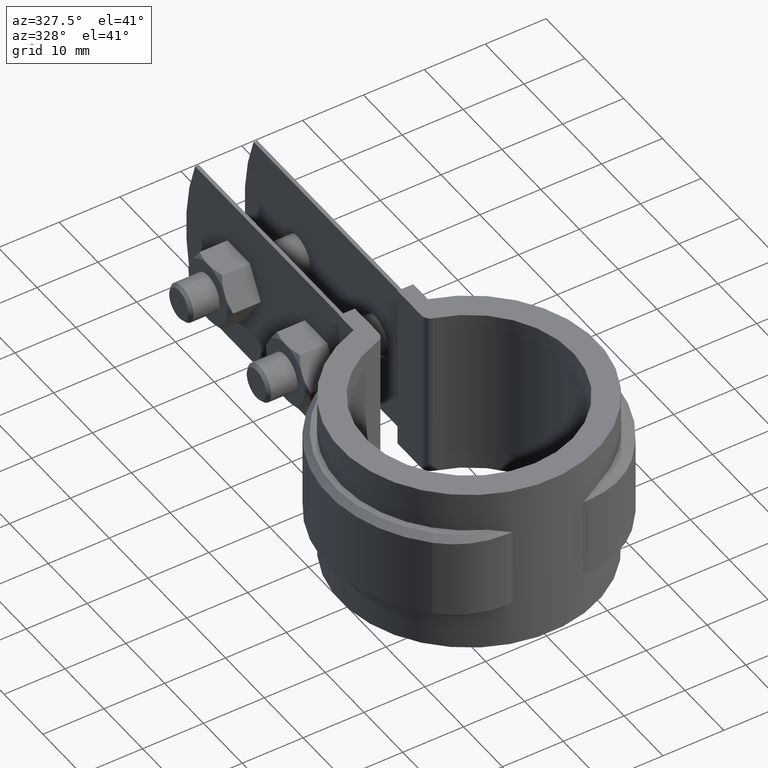
[diagram: clean part render]
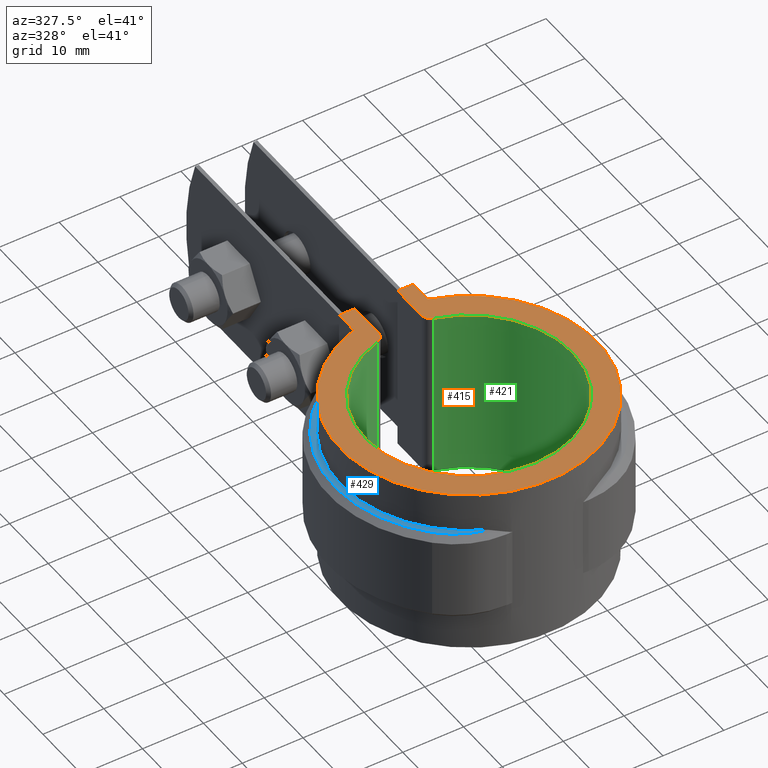
[diagram: same view with three faces highlighted in distinct colors, each labeled with its STEP entity id]
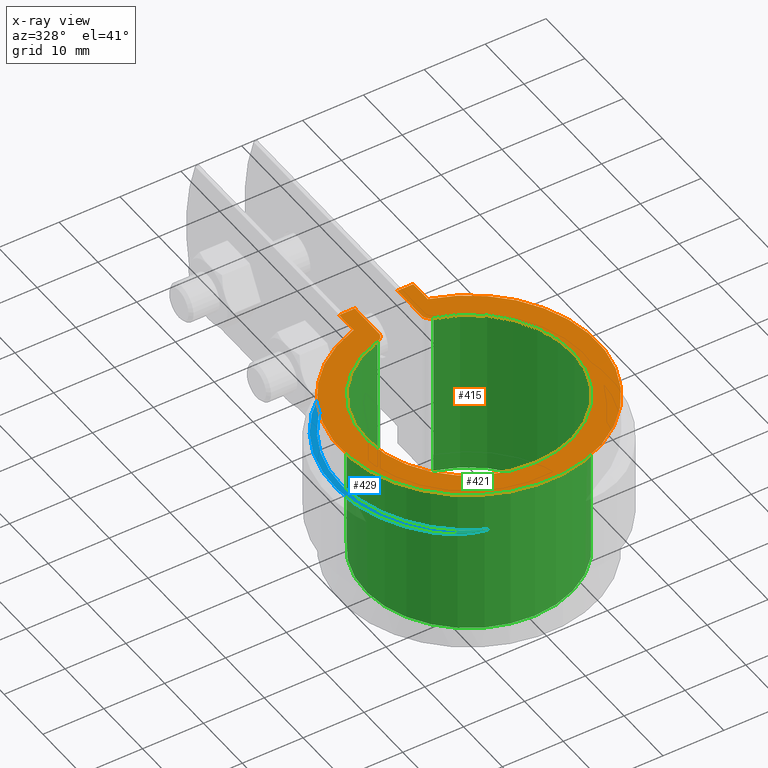
[diagram: x-ray of the same camera — body ghosted, the three highlighted faces saturated]
A machine part, auxiliary view with three faces highlighted in distinct colors.
The next image is the same camera in x-ray (body ghosted, the three faces saturated) — at least one of them is partly hidden behind the body in this view.
Their STEP definitions:

[orange] entity #415 — the highlighted planar face has unit normal (0, 0, 1).
#415 = ADVANCED_FACE( '', ( #721 ), #722, .T. );
#721 = FACE_OUTER_BOUND( '', #1519, .T. );
#722 = PLANE( '', #1520 );
#1519 = EDGE_LOOP( '', ( #3294, #3295, #3296, #3297, #3298, #3299, #3300, #3301, #3302, #3303 ) );
#1520 = AXIS2_PLACEMENT_3D( '', #3304, #3305, #3306 );
#3294 = ORIENTED_EDGE( '', *, *, #4292, .T. );
#3295 = ORIENTED_EDGE( '', *, *, #4316, .T. );
#3296 = ORIENTED_EDGE( '', *, *, #4317, .T. );
#3297 = ORIENTED_EDGE( '', *, *, #4318, .T. );
#3298 = ORIENTED_EDGE( '', *, *, #4319, .F. );
#3299 = ORIENTED_EDGE( '', *, *, #4320, .T. );
#3300 = ORIENTED_EDGE( '', *, *, #4289, .T. );
#3301 = ORIENTED_EDGE( '', *, *, #4135, .T. );
#3302 = ORIENTED_EDGE( '', *, *, #4126, .T. );
#3303 = ORIENTED_EDGE( '', *, *, #4285, .T. );
#3304 = CARTESIAN_POINT( '', ( -4.33680868994202E-015, 0.000000000000000, 1.50000000000000 ) );
#3305 = DIRECTION( '', ( 0.000000000000000, 0.000000000000000, 1.00000000000000 ) );
#3306 = DIRECTION( '', ( -1.00000000000000, 6.07153216591882E-017, 0.000000000000000 ) );
#4126 = EDGE_CURVE( '', #4738, #4739, #4740, .T. );
#4135 = EDGE_CURVE( '', #4755, #4738, #4756, .T. );
#4285 = EDGE_CURVE( '', #4739, #5010, #5012, .T. );
#4289 = EDGE_CURVE( '', #5018, #4755, #5019, .T. );
#4292 = EDGE_CURVE( '', #5010, #5021, #5023, .T. );
#4316 = EDGE_CURVE( '', #5021, #5056, #5057, .T. );
#4317 = EDGE_CURVE( '', #5056, #5058, #5059, .T. );
#4318 = EDGE_CURVE( '', #5058, #5060, #5061, .F. );
#4319 = EDGE_CURVE( '', #5062, #5060, #5063, .F. );
#4320 = EDGE_CURVE( '', #5062, #5018, #5064, .F. );
#4738 = VERTEX_POINT( '', #6388 );
#4739 = VERTEX_POINT( '', #6389 );
#4740 = LINE( '', #6390, #6391 );
#4755 = VERTEX_POINT( '', #6418 );
#4756 = LINE( '', #6419, #6420 );
#5010 = VERTEX_POINT( '', #7492 );
#5012 = CIRCLE( '', #7495, 21.0950000000000 );
#5018 = VERTEX_POINT( '', #7504 );
#5019 = LINE( '', #7505, #7506 );
#5021 = VERTEX_POINT( '', #7509 );
#5023 = LINE( '', #7512, #7513 );
#5056 = VERTEX_POINT( '', #7563 );
#5057 = LINE( '', #7564, #7565 );
#5058 = VERTEX_POINT( '', #7566 );
#5059 = LINE( '', #7567, #7568 );
#5060 = VERTEX_POINT( '', #7569 );
#5061 = CIRCLE( '', #7570, 1.50000000000000 );
#5062 = VERTEX_POINT( '', #7571 );
#5063 = CIRCLE( '', #7572, 17.0000000000000 );
#5064 = CIRCLE( '', #7573, 1.50000000000000 );
#6388 = CARTESIAN_POINT( '', ( -6.10000000000002, 23.9443584449257, 1.50000000000000 ) );
#6389 = CARTESIAN_POINT( '', ( -6.10000000000002, 20.1937867919813, 1.50000000000000 ) );
#6390 = CARTESIAN_POINT( '', ( -6.10000000000002, 24.4800000000000, 1.50000000000000 ) );
#6391 = VECTOR( '', #8220, 1000.00000000000 );
#6418 = CARTESIAN_POINT( '', ( -3.49999999999999, 23.9443584449257, 1.50000000000000 ) );
#6419 = CARTESIAN_POINT( '', ( -4.33680868994202E-015, 23.9443584449257, 1.50000000000000 ) );
#6420 = VECTOR( '', #8227, 1000.00000000000 );
#7492 = CARTESIAN_POINT( '', ( 6.09999999999997, 20.1937867919813, 1.50000000000000 ) );
#7495 = AXIS2_PLACEMENT_3D( '', #8393, #8394, #8395 );
#7504 = CARTESIAN_POINT( '', ( -3.49999999999999, 17.8115131305569, 1.50000000000000 ) );
#7505 = CARTESIAN_POINT( '', ( -3.49999999999999, 16.6306952650814, 1.50000000000000 ) );
#7506 = VECTOR( '', #8399, 1000.00000000000 );
#7509 = CARTESIAN_POINT( '', ( 6.09999999999997, 23.9443584449257, 1.50000000000000 ) );
#7512 = CARTESIAN_POINT( '', ( 6.09999999999997, 20.1937867919813, 1.50000000000000 ) );
#7513 = VECTOR( '', #8402, 1000.00000000000 );
#7563 = CARTESIAN_POINT( '', ( 3.50000000000000, 23.9443584449257, 1.50000000000000 ) );
#7564 = CARTESIAN_POINT( '', ( -4.33680868994202E-015, 23.9443584449257, 1.50000000000000 ) );
#7565 = VECTOR( '', #8444, 1000.00000000000 );
#7566 = CARTESIAN_POINT( '', ( 3.50000000000000, 17.8115131305569, 1.50000000000000 ) );
#7567 = CARTESIAN_POINT( '', ( 3.50000000000000, 24.4800000000000, 1.50000000000000 ) );
#7568 = VECTOR( '', #8445, 1000.00000000000 );
#7569 = CARTESIAN_POINT( '', ( 4.59459459459460, 16.3673363902415, 1.50000000000000 ) );
#7570 = AXIS2_PLACEMENT_3D( '', #8446, #8447, #8448 );
#7571 = CARTESIAN_POINT( '', ( -4.59459459459459, 16.3673363902415, 1.50000000000000 ) );
#7572 = AXIS2_PLACEMENT_3D( '', #8449, #8450, #8451 );
#7573 = AXIS2_PLACEMENT_3D( '', #8452, #8453, #8454 );
#8220 = DIRECTION( '', ( -6.07153216591882E-017, -1.00000000000000, 0.000000000000000 ) );
#8227 = DIRECTION( '', ( -1.00000000000000, 0.000000000000000, 0.000000000000000 ) );
#8393 = CARTESIAN_POINT( '', ( -4.33680868994202E-015, 0.000000000000000, 1.50000000000000 ) );
#8394 = DIRECTION( '', ( 0.000000000000000, 0.000000000000000, 1.00000000000000 ) );
#8395 = DIRECTION( '', ( 1.00000000000000, -6.07153216591882E-017, 0.000000000000000 ) );
#8399 = DIRECTION( '', ( 6.07153216591882E-017, 1.00000000000000, 0.000000000000000 ) );
#8402 = DIRECTION( '', ( 6.07153216591882E-017, 1.00000000000000, 0.000000000000000 ) );
#8444 = DIRECTION( '', ( -1.00000000000000, 0.000000000000000, 0.000000000000000 ) );
#8445 = DIRECTION( '', ( -6.07153216591882E-017, -1.00000000000000, 0.000000000000000 ) );
#8446 = CARTESIAN_POINT( '', ( 5.00000000000000, 17.8115131305569, 1.50000000000000 ) );
#8447 = DIRECTION( '', ( 0.000000000000000, 0.000000000000000, -1.00000000000000 ) );
#8448 = DIRECTION( '', ( -1.00000000000000, 0.000000000000000, 0.000000000000000 ) );
#8449 = CARTESIAN_POINT( '', ( 0.000000000000000, 0.000000000000000, 1.50000000000000 ) );
#8450 = DIRECTION( '', ( 0.000000000000000, 0.000000000000000, -1.00000000000000 ) );
#8451 = DIRECTION( '', ( -1.00000000000000, 0.000000000000000, 0.000000000000000 ) );
#8452 = CARTESIAN_POINT( '', ( -4.99999999999999, 17.8115131305569, 1.50000000000000 ) );
#8453 = DIRECTION( '', ( 0.000000000000000, 0.000000000000000, -1.00000000000000 ) );
#8454 = DIRECTION( '', ( -1.00000000000000, 0.000000000000000, 0.000000000000000 ) );

[blue] entity #429 — the highlighted planar face has unit normal (0, 0, -1).
#429 = ADVANCED_FACE( '', ( #749 ), #750, .F. );
#749 = FACE_OUTER_BOUND( '', #1547, .T. );
#750 = PLANE( '', #1548 );
#1547 = EDGE_LOOP( '', ( #3406, #3407, #3408, #3409 ) );
#1548 = AXIS2_PLACEMENT_3D( '', #3410, #3411, #3412 );
#3406 = ORIENTED_EDGE( '', *, *, #4331, .T. );
#3407 = ORIENTED_EDGE( '', *, *, #4329, .T. );
#3408 = ORIENTED_EDGE( '', *, *, #4270, .T. );
#3409 = ORIENTED_EDGE( '', *, *, #4133, .T. );
#3410 = CARTESIAN_POINT( '', ( -8.67361737988404E-016, -6.93889390390723E-015, -5.00000000000000 ) );
#3411 = DIRECTION( '', ( 0.000000000000000, 0.000000000000000, -1.00000000000000 ) );
#3412 = DIRECTION( '', ( -0.275275955036381, -0.961365252429486, 0.000000000000000 ) );
#4133 = EDGE_CURVE( '', #4752, #4750, #4753, .T. );
#4270 = EDGE_CURVE( '', #4984, #4752, #4985, .T. );
#4329 = EDGE_CURVE( '', #5071, #4984, #5075, .F. );
#4331 = EDGE_CURVE( '', #4750, #5071, #5077, .F. );
#4750 = VERTEX_POINT( '', #6408 );
#4752 = VERTEX_POINT( '', #6413 );
#4753 = LINE( '', #6414, #6415 );
#4984 = VERTEX_POINT( '', #7454 );
#4985 = CIRCLE( '', #7455, 21.0950000000000 );
#5071 = VERTEX_POINT( '', #7586 );
#5075 = CIRCLE( '', #7591, 12.6000000000000 );
#5077 = CIRCLE( '', #7593, 22.0950000000000 );
#6408 = CARTESIAN_POINT( '', ( -6.10000000000002, 21.2362667387655, -5.00000000000000 ) );
#6413 = CARTESIAN_POINT( '', ( -6.10000000000003, 20.1937867919813, -5.00000000000000 ) );
#6414 = CARTESIAN_POINT( '', ( -6.10000000000002, 20.1937867919813, -5.00000000000000 ) );
#6415 = VECTOR( '', #8225, 1000.00000000000 );
#7454 = CARTESIAN_POINT( '', ( -9.00579582913148, -19.0760233404134, -5.00000000000000 ) );
#7455 = AXIS2_PLACEMENT_3D( '', #8365, #8366, #8367 );
#7586 = CARTESIAN_POINT( '', ( -15.7021955308702, -15.5444549763033, -5.00000000000000 ) );
#7591 = AXIS2_PLACEMENT_3D( '', #8465, #8466, #8467 );
#7593 = AXIS2_PLACEMENT_3D( '', #8471, #8472, #8473 );
#8225 = DIRECTION( '', ( 1.11022302462516E-016, 1.00000000000000, 0.000000000000000 ) );
#8365 = CARTESIAN_POINT( '', ( -8.67361737988404E-016, -6.93889390390723E-015, -5.00000000000000 ) );
#8366 = DIRECTION( '', ( 0.000000000000000, 0.000000000000000, -1.00000000000000 ) );
#8367 = DIRECTION( '', ( 1.00000000000000, -5.55111512312578E-017, 0.000000000000000 ) );
#8465 = CARTESIAN_POINT( '', ( -6.74778667416212, -6.68000000000001, -5.00000000000000 ) );
#8466 = DIRECTION( '', ( 0.000000000000000, 0.000000000000000, -1.00000000000000 ) );
#8467 = DIRECTION( '', ( -1.00000000000000, 0.000000000000000, 0.000000000000000 ) );
#8471 = CARTESIAN_POINT( '', ( -8.67361737988404E-016, -6.93889390390723E-015, -5.00000000000000 ) );
#8472 = DIRECTION( '', ( 0.000000000000000, 0.000000000000000, -1.00000000000000 ) );
#8473 = DIRECTION( '', ( -1.00000000000000, 0.000000000000000, 0.000000000000000 ) );

[green] entity #421 — the highlighted cylindrical surface (partial cylindrical patch) has radius 17 mm, axis along (0, 0, -1).
#421 = ADVANCED_FACE( '', ( #733 ), #734, .F. );
#733 = FACE_OUTER_BOUND( '', #1531, .T. );
#734 = CYLINDRICAL_SURFACE( '', #1532, 17.0000000000000 );
#1531 = EDGE_LOOP( '', ( #3350, #3351, #3352, #3353 ) );
#1532 = AXIS2_PLACEMENT_3D( '', #3354, #3355, #3356 );
#3350 = ORIENTED_EDGE( '', *, *, #4319, .T. );
#3351 = ORIENTED_EDGE( '', *, *, #4323, .T. );
#3352 = ORIENTED_EDGE( '', *, *, #4123, .F. );
#3353 = ORIENTED_EDGE( '', *, *, #4322, .T. );
#3354 = CARTESIAN_POINT( '', ( 0.000000000000000, 0.000000000000000, -74.7559907814303 ) );
#3355 = DIRECTION( '', ( 0.000000000000000, 0.000000000000000, -1.00000000000000 ) );
#3356 = DIRECTION( '', ( -1.00000000000000, 0.000000000000000, 0.000000000000000 ) );
#4123 = EDGE_CURVE( '', #4731, #4733, #4734, .F. );
#4319 = EDGE_CURVE( '', #5062, #5060, #5063, .F. );
#4322 = EDGE_CURVE( '', #4731, #5062, #5066, .T. );
#4323 = EDGE_CURVE( '', #5060, #4733, #5067, .F. );
#4731 = VERTEX_POINT( '', #6380 );
#4733 = VERTEX_POINT( '', #6382 );
#4734 = CIRCLE( '', #6383, 17.0000000000000 );
#5060 = VERTEX_POINT( '', #7569 );
#5062 = VERTEX_POINT( '', #7571 );
#5063 = CIRCLE( '', #7572, 17.0000000000000 );
#5066 = LINE( '', #7576, #7577 );
#5067 = LINE( '', #7578, #7579 );
#6380 = CARTESIAN_POINT( '', ( -4.59459459459459, 16.3673363902415, -26.5000000000000 ) );
#6382 = CARTESIAN_POINT( '', ( 4.59459459459460, 16.3673363902415, -26.5000000000000 ) );
#6383 = AXIS2_PLACEMENT_3D( '', #8213, #8214, #8215 );
#7569 = CARTESIAN_POINT( '', ( 4.59459459459460, 16.3673363902415, 1.50000000000000 ) );
#7571 = CARTESIAN_POINT( '', ( -4.59459459459459, 16.3673363902415, 1.50000000000000 ) );
#7572 = AXIS2_PLACEMENT_3D( '', #8449, #8450, #8451 );
#7576 = CARTESIAN_POINT( '', ( -4.59459459459459, 16.3673363902415, -74.7559907814303 ) );
#7577 = VECTOR( '', #8456, 1000.00000000000 );
#7578 = CARTESIAN_POINT( '', ( 4.59459459459460, 16.3673363902415, -74.7559907814303 ) );
#7579 = VECTOR( '', #8457, 1000.00000000000 );
#8213 = CARTESIAN_POINT( '', ( 0.000000000000000, 0.000000000000000, -26.5000000000000 ) );
#8214 = DIRECTION( '', ( 0.000000000000000, 0.000000000000000, -1.00000000000000 ) );
#8215 = DIRECTION( '', ( -1.00000000000000, 0.000000000000000, 0.000000000000000 ) );
#8449 = CARTESIAN_POINT( '', ( 0.000000000000000, 0.000000000000000, 1.50000000000000 ) );
#8450 = DIRECTION( '', ( 0.000000000000000, 0.000000000000000, -1.00000000000000 ) );
#8451 = DIRECTION( '', ( -1.00000000000000, 0.000000000000000, 0.000000000000000 ) );
#8456 = DIRECTION( '', ( 0.000000000000000, 0.000000000000000, 1.00000000000000 ) );
#8457 = DIRECTION( '', ( 0.000000000000000, 0.000000000000000, 1.00000000000000 ) );